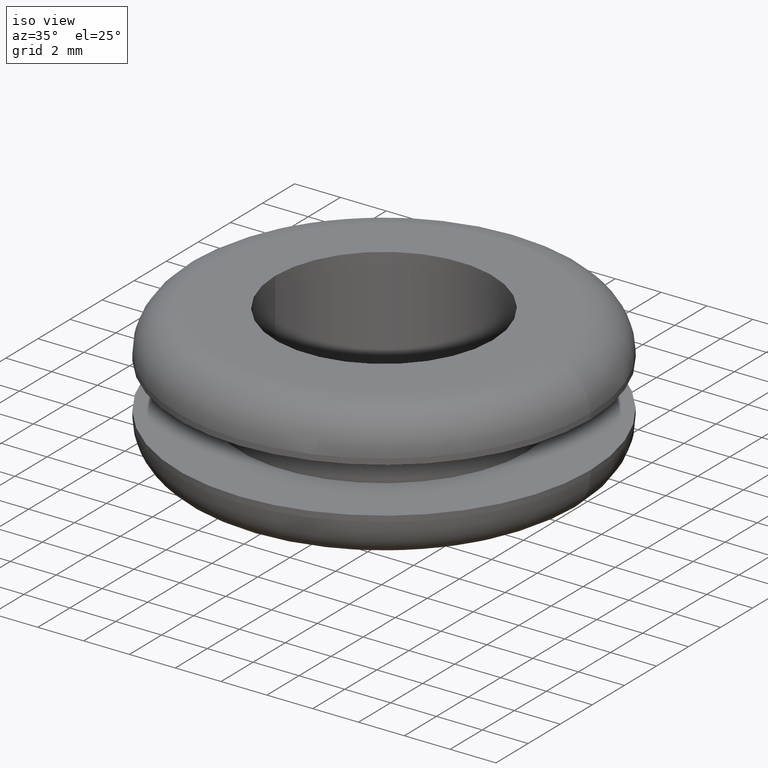
[diagram: clean part render]
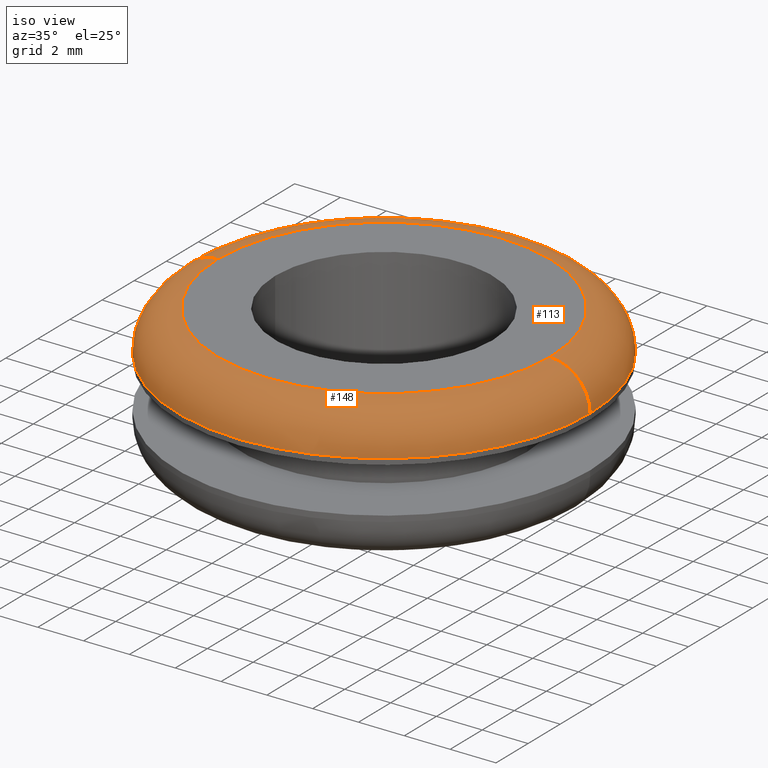
[diagram: same view with one multi-face feature highlighted, each face labeled with its STEP entity id]
A machine part, iso view. The highlighted faces form ONE feature: a constant-radius fillet chain: 2 tangent blend faces with common blend radius 1.75 mm. The faces share edges in the B-rep.
Their STEP definitions:
[1] entity #148 (Torus):
#10 = DIRECTION ( 'NONE',  ( -1.000000000000000000, -1.224646799147352200E-016, 0.0000000000000000000 ) ) ;
#20 = AXIS2_PLACEMENT_3D ( 'NONE', #267, #191, #220 ) ;
#28 = CIRCLE ( 'NONE', #221, 7.250000000022002800 ) ;
#33 = EDGE_CURVE ( 'NONE', #87, #343, #436, .T. ) ;
#34 = VERTEX_POINT ( 'NONE', #435 ) ;
#45 = AXIS2_PLACEMENT_3D ( 'NONE', #228, #156, #120 ) ;
#47 = DIRECTION ( 'NONE',  ( -1.000000000000000000, 0.0000000000000000000, 0.0000000000000000000 ) ) ;
#61 = CARTESIAN_POINT ( 'NONE',  ( 109.5089284890372000, 1.102182119235311300E-015, 133.8788681965059800 ) ) ;
#87 = VERTEX_POINT ( 'NONE', #272 ) ;
#91 = CARTESIAN_POINT ( 'NONE',  ( 100.5089284890152000, 0.0000000000000000000, 135.6288681965060100 ) ) ;
#120 = DIRECTION ( 'NONE',  ( 0.0000000000000000000, 0.0000000000000000000, -1.000000000000000000 ) ) ;
#123 = DIRECTION ( 'NONE',  ( 0.0000000000000000000, 0.0000000000000000000, -1.000000000000000000 ) ) ;
#131 = CIRCLE ( 'NONE', #45, 1.750000000000001600 ) ;
#146 = CARTESIAN_POINT ( 'NONE',  ( 91.50892848899319200, 0.0000000000000000000, 133.8788681965059800 ) ) ;
#147 = VERTEX_POINT ( 'NONE', #146 ) ;
#148 = ADVANCED_FACE ( 'NONE', ( #335 ), #434, .T. ) ;
#152 = AXIS2_PLACEMENT_3D ( 'NONE', #338, #123, #378 ) ;
#156 = DIRECTION ( 'NONE',  ( -0.0000000000000000000, -1.000000000000000000, -0.0000000000000000000 ) ) ;
#166 = EDGE_CURVE ( 'NONE', #34, #147, #131, .T. ) ;
#190 = EDGE_CURVE ( 'NONE', #343, #147, #383, .T. ) ;
#191 = DIRECTION ( 'NONE',  ( 0.0000000000000000000, 0.0000000000000000000, -1.000000000000000000 ) ) ;
#202 = ORIENTED_EDGE ( 'NONE', *, *, #33, .F. ) ;
#220 = DIRECTION ( 'NONE',  ( -1.000000000000000000, 0.0000000000000000000, 0.0000000000000000000 ) ) ;
#221 = AXIS2_PLACEMENT_3D ( 'NONE', #91, #306, #47 ) ;
#228 = CARTESIAN_POINT ( 'NONE',  ( 93.25892848899319200, 0.0000000000000000000, 133.8788681965059800 ) ) ;
#231 = EDGE_LOOP ( 'NONE', ( #202, #353, #323, #471 ) ) ;
#238 = EDGE_CURVE ( 'NONE', #87, #34, #28, .T. ) ;
#267 = CARTESIAN_POINT ( 'NONE',  ( 100.5089284890152000, 0.0000000000000000000, 133.8788681965059800 ) ) ;
#272 = CARTESIAN_POINT ( 'NONE',  ( 107.7589284890372000, 9.950255243099186200E-016, 135.6288681965060100 ) ) ;
#306 = DIRECTION ( 'NONE',  ( 0.0000000000000000000, 0.0000000000000000000, -1.000000000000000000 ) ) ;
#323 = ORIENTED_EDGE ( 'NONE', *, *, #166, .T. ) ;
#335 = FACE_OUTER_BOUND ( 'NONE', #231, .T. ) ;
#338 = CARTESIAN_POINT ( 'NONE',  ( 100.5089284890152000, 0.0000000000000000000, 133.8788681965059800 ) ) ;
#343 = VERTEX_POINT ( 'NONE', #61 ) ;
#353 = ORIENTED_EDGE ( 'NONE', *, *, #238, .T. ) ;
#378 = DIRECTION ( 'NONE',  ( -1.000000000000000000, 0.0000000000000000000, 0.0000000000000000000 ) ) ;
#383 = CIRCLE ( 'NONE', #152, 9.000000000022003700 ) ;
#413 = CARTESIAN_POINT ( 'NONE',  ( 107.7589284890372000, 8.878689293845252600E-016, 133.8788681965059800 ) ) ;
#434 = TOROIDAL_SURFACE ( 'NONE', #20, 7.250000000022000200, 1.750000000000000000 ) ;
#435 = CARTESIAN_POINT ( 'NONE',  ( 93.25892848899319200, 0.0000000000000000000, 135.6288681965060100 ) ) ;
#436 = CIRCLE ( 'NONE', #445, 1.750000000000001600 ) ;
#445 = AXIS2_PLACEMENT_3D ( 'NONE', #413, #451, #10 ) ;
#451 = DIRECTION ( 'NONE',  ( -1.224646799147353200E-016, 1.000000000000000000, 0.0000000000000000000 ) ) ;
#471 = ORIENTED_EDGE ( 'NONE', *, *, #190, .F. ) ;
[2] entity #113 (Torus):
#3 = AXIS2_PLACEMENT_3D ( 'NONE', #138, #358, #392 ) ;
#10 = DIRECTION ( 'NONE',  ( -1.000000000000000000, -1.224646799147352200E-016, 0.0000000000000000000 ) ) ;
#33 = EDGE_CURVE ( 'NONE', #87, #343, #436, .T. ) ;
#34 = VERTEX_POINT ( 'NONE', #435 ) ;
#45 = AXIS2_PLACEMENT_3D ( 'NONE', #228, #156, #120 ) ;
#61 = CARTESIAN_POINT ( 'NONE',  ( 109.5089284890372000, 1.102182119235311300E-015, 133.8788681965059800 ) ) ;
#87 = VERTEX_POINT ( 'NONE', #272 ) ;
#113 = ADVANCED_FACE ( 'NONE', ( #334 ), #240, .T. ) ;
#116 = EDGE_CURVE ( 'NONE', #147, #343, #157, .T. ) ;
#118 = AXIS2_PLACEMENT_3D ( 'NONE', #443, #223, #405 ) ;
#120 = DIRECTION ( 'NONE',  ( 0.0000000000000000000, 0.0000000000000000000, -1.000000000000000000 ) ) ;
#125 = ORIENTED_EDGE ( 'NONE', *, *, #166, .F. ) ;
#131 = CIRCLE ( 'NONE', #45, 1.750000000000001600 ) ;
#138 = CARTESIAN_POINT ( 'NONE',  ( 100.5089284890152000, 0.0000000000000000000, 135.6288681965060100 ) ) ;
#142 = AXIS2_PLACEMENT_3D ( 'NONE', #430, #476, #399 ) ;
#146 = CARTESIAN_POINT ( 'NONE',  ( 91.50892848899319200, 0.0000000000000000000, 133.8788681965059800 ) ) ;
#147 = VERTEX_POINT ( 'NONE', #146 ) ;
#156 = DIRECTION ( 'NONE',  ( -0.0000000000000000000, -1.000000000000000000, -0.0000000000000000000 ) ) ;
#157 = CIRCLE ( 'NONE', #118, 9.000000000022003700 ) ;
#166 = EDGE_CURVE ( 'NONE', #34, #147, #131, .T. ) ;
#223 = DIRECTION ( 'NONE',  ( 0.0000000000000000000, 0.0000000000000000000, -1.000000000000000000 ) ) ;
#228 = CARTESIAN_POINT ( 'NONE',  ( 93.25892848899319200, 0.0000000000000000000, 133.8788681965059800 ) ) ;
#240 = TOROIDAL_SURFACE ( 'NONE', #142, 7.250000000022000200, 1.750000000000000000 ) ;
#246 = EDGE_LOOP ( 'NONE', ( #315, #249, #247, #125 ) ) ;
#247 = ORIENTED_EDGE ( 'NONE', *, *, #116, .F. ) ;
#249 = ORIENTED_EDGE ( 'NONE', *, *, #33, .T. ) ;
#272 = CARTESIAN_POINT ( 'NONE',  ( 107.7589284890372000, 9.950255243099186200E-016, 135.6288681965060100 ) ) ;
#311 = CIRCLE ( 'NONE', #3, 7.250000000022002800 ) ;
#315 = ORIENTED_EDGE ( 'NONE', *, *, #467, .T. ) ;
#334 = FACE_OUTER_BOUND ( 'NONE', #246, .T. ) ;
#343 = VERTEX_POINT ( 'NONE', #61 ) ;
#358 = DIRECTION ( 'NONE',  ( 0.0000000000000000000, 0.0000000000000000000, -1.000000000000000000 ) ) ;
#392 = DIRECTION ( 'NONE',  ( -1.000000000000000000, 0.0000000000000000000, 0.0000000000000000000 ) ) ;
#399 = DIRECTION ( 'NONE',  ( -1.000000000000000000, 0.0000000000000000000, 0.0000000000000000000 ) ) ;
#405 = DIRECTION ( 'NONE',  ( -1.000000000000000000, 0.0000000000000000000, 0.0000000000000000000 ) ) ;
#413 = CARTESIAN_POINT ( 'NONE',  ( 107.7589284890372000, 8.878689293845252600E-016, 133.8788681965059800 ) ) ;
#430 = CARTESIAN_POINT ( 'NONE',  ( 100.5089284890152000, 0.0000000000000000000, 133.8788681965059800 ) ) ;
#435 = CARTESIAN_POINT ( 'NONE',  ( 93.25892848899319200, 0.0000000000000000000, 135.6288681965060100 ) ) ;
#436 = CIRCLE ( 'NONE', #445, 1.750000000000001600 ) ;
#443 = CARTESIAN_POINT ( 'NONE',  ( 100.5089284890152000, 0.0000000000000000000, 133.8788681965059800 ) ) ;
#445 = AXIS2_PLACEMENT_3D ( 'NONE', #413, #451, #10 ) ;
#451 = DIRECTION ( 'NONE',  ( -1.224646799147353200E-016, 1.000000000000000000, 0.0000000000000000000 ) ) ;
#467 = EDGE_CURVE ( 'NONE', #34, #87, #311, .T. ) ;
#476 = DIRECTION ( 'NONE',  ( 0.0000000000000000000, 0.0000000000000000000, -1.000000000000000000 ) ) ;